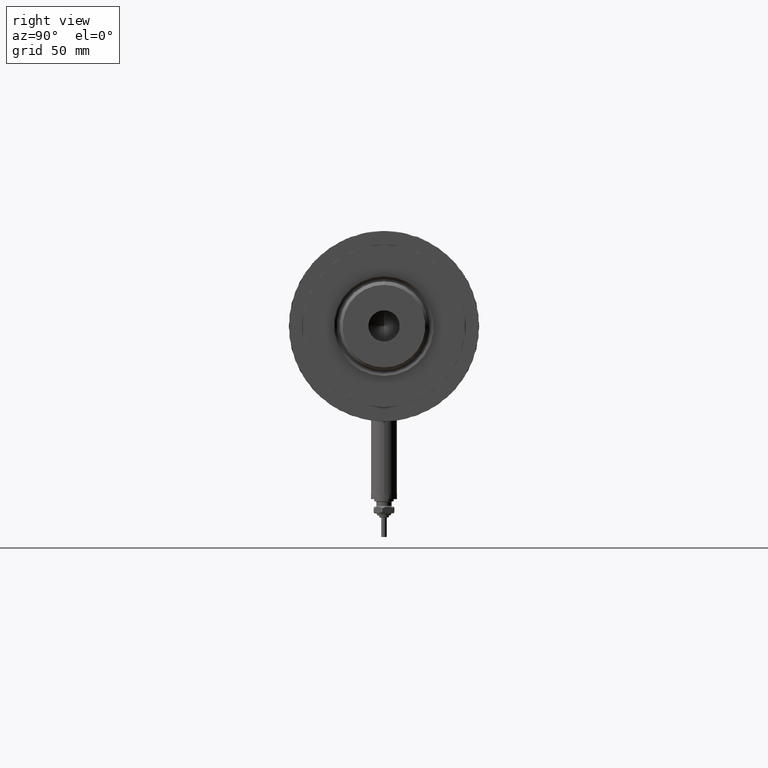
[diagram: clean part render]
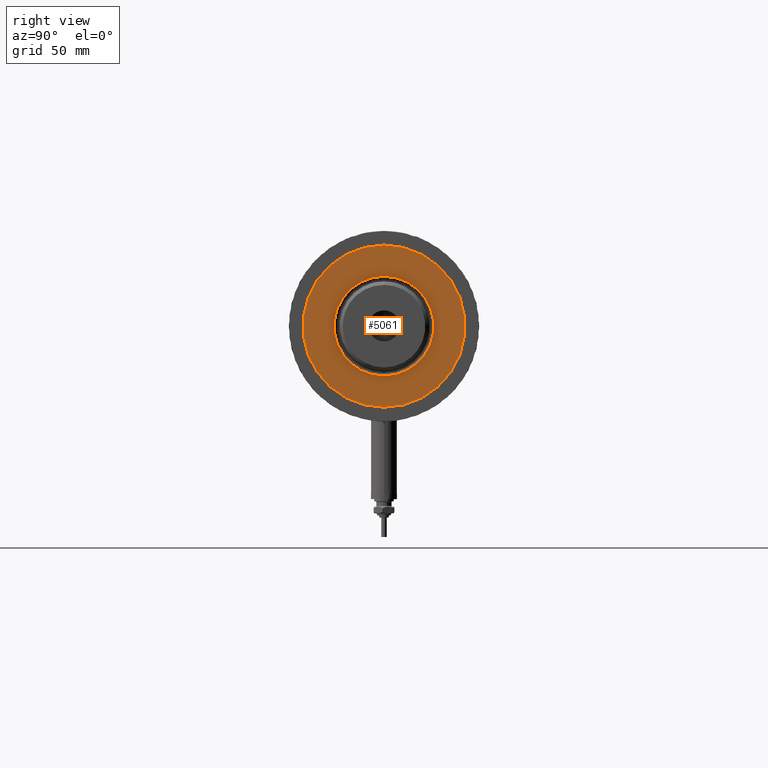
[diagram: same view with one face highlighted and labeled with its STEP entity id]
A machine part, right view. The second image highlights one B-rep face of the part: STEP entity #5061.
In plain terms, the highlighted planar face has unit normal (1, 0, -0).
Its self-contained STEP definition (entity closure, byte-faithful):
#83 = CARTESIAN_POINT ( 'NONE',  ( 37.50000000000000711, 4.592425496802575156E-15, 59.89999999999999147 ) ) ;
#112 = ORIENTED_EDGE ( 'NONE', *, *, #5016, .T. ) ;
#158 = EDGE_CURVE ( 'NONE', #3289, #5094, #1441, .T. ) ;
#225 = FACE_OUTER_BOUND ( 'NONE', #718, .T. ) ;
#241 = DIRECTION ( 'NONE',  ( 1.000000000000000000, 0.000000000000000000, 0.000000000000000000 ) ) ;
#551 = DIRECTION ( 'NONE',  ( 0.000000000000000000, 0.000000000000000000, 1.000000000000000000 ) ) ;
#563 = CARTESIAN_POINT ( 'NONE',  ( 0.000000000000000000, 0.000000000000000000, 59.89999999999999147 ) ) ;
#653 = CARTESIAN_POINT ( 'NONE',  ( 23.05000000000002913, 0.000000000000000000, 59.89999999999999147 ) ) ;
#660 = AXIS2_PLACEMENT_3D ( 'NONE', #889, #1339, #1829 ) ;
#718 = EDGE_LOOP ( 'NONE', ( #5872, #1608 ) ) ;
#889 = CARTESIAN_POINT ( 'NONE',  ( 0.000000000000000000, 0.000000000000000000, 59.89999999999999147 ) ) ;
#1023 = PLANE ( 'NONE',  #5167 ) ;
#1339 = DIRECTION ( 'NONE',  ( -0.000000000000000000, -0.000000000000000000, -1.000000000000000000 ) ) ;
#1410 = EDGE_CURVE ( 'NONE', #5157, #2101, #3089, .T. ) ;
#1441 = CIRCLE ( 'NONE', #2811, 37.50000000000000711 ) ;
#1498 = CARTESIAN_POINT ( 'NONE',  ( 0.000000000000000000, 0.000000000000000000, 59.89999999999999147 ) ) ;
#1608 = ORIENTED_EDGE ( 'NONE', *, *, #1747, .T. ) ;
#1747 = EDGE_CURVE ( 'NONE', #5094, #3289, #5637, .T. ) ;
#1829 = DIRECTION ( 'NONE',  ( 1.000000000000000000, 0.000000000000000000, 0.000000000000000000 ) ) ;
#2101 = VERTEX_POINT ( 'NONE', #653 ) ;
#2615 = CARTESIAN_POINT ( 'NONE',  ( -37.50000000000000711, 0.000000000000000000, 59.89999999999999147 ) ) ;
#2746 = AXIS2_PLACEMENT_3D ( 'NONE', #5035, #4127, #3221 ) ;
#2794 = DIRECTION ( 'NONE',  ( 0.000000000000000000, 0.000000000000000000, 1.000000000000000000 ) ) ;
#2811 = AXIS2_PLACEMENT_3D ( 'NONE', #1498, #551, #4659 ) ;
#3089 = CIRCLE ( 'NONE', #660, 23.05000000000002913 ) ;
#3221 = DIRECTION ( 'NONE',  ( 1.000000000000000000, 0.000000000000000000, 0.000000000000000000 ) ) ;
#3289 = VERTEX_POINT ( 'NONE', #2615 ) ;
#4127 = DIRECTION ( 'NONE',  ( -0.000000000000000000, -0.000000000000000000, -1.000000000000000000 ) ) ;
#4659 = DIRECTION ( 'NONE',  ( 1.000000000000000000, 0.000000000000000000, 0.000000000000000000 ) ) ;
#4744 = AXIS2_PLACEMENT_3D ( 'NONE', #4770, #4855, #241 ) ;
#4770 = CARTESIAN_POINT ( 'NONE',  ( 0.000000000000000000, 0.000000000000000000, 59.89999999999999147 ) ) ;
#4842 = CARTESIAN_POINT ( 'NONE',  ( -23.05000000000002913, 2.822810872034651791E-15, 59.89999999999999147 ) ) ;
#4855 = DIRECTION ( 'NONE',  ( 0.000000000000000000, 0.000000000000000000, 1.000000000000000000 ) ) ;
#5016 = EDGE_CURVE ( 'NONE', #2101, #5157, #5361, .T. ) ;
#5035 = CARTESIAN_POINT ( 'NONE',  ( 0.000000000000000000, 0.000000000000000000, 59.89999999999999147 ) ) ;
#5061 = ADVANCED_FACE ( 'NONE', ( #5129, #225 ), #1023, .T. ) ;
#5094 = VERTEX_POINT ( 'NONE', #83 ) ;
#5129 = FACE_BOUND ( 'NONE', #5143, .T. ) ;
#5143 = EDGE_LOOP ( 'NONE', ( #112, #5632 ) ) ;
#5157 = VERTEX_POINT ( 'NONE', #4842 ) ;
#5167 = AXIS2_PLACEMENT_3D ( 'NONE', #563, #2794, #5652 ) ;
#5361 = CIRCLE ( 'NONE', #2746, 23.05000000000002913 ) ;
#5632 = ORIENTED_EDGE ( 'NONE', *, *, #1410, .T. ) ;
#5637 = CIRCLE ( 'NONE', #4744, 37.50000000000000711 ) ;
#5652 = DIRECTION ( 'NONE',  ( 1.000000000000000000, 0.000000000000000000, -0.000000000000000000 ) ) ;
#5872 = ORIENTED_EDGE ( 'NONE', *, *, #158, .T. ) ;